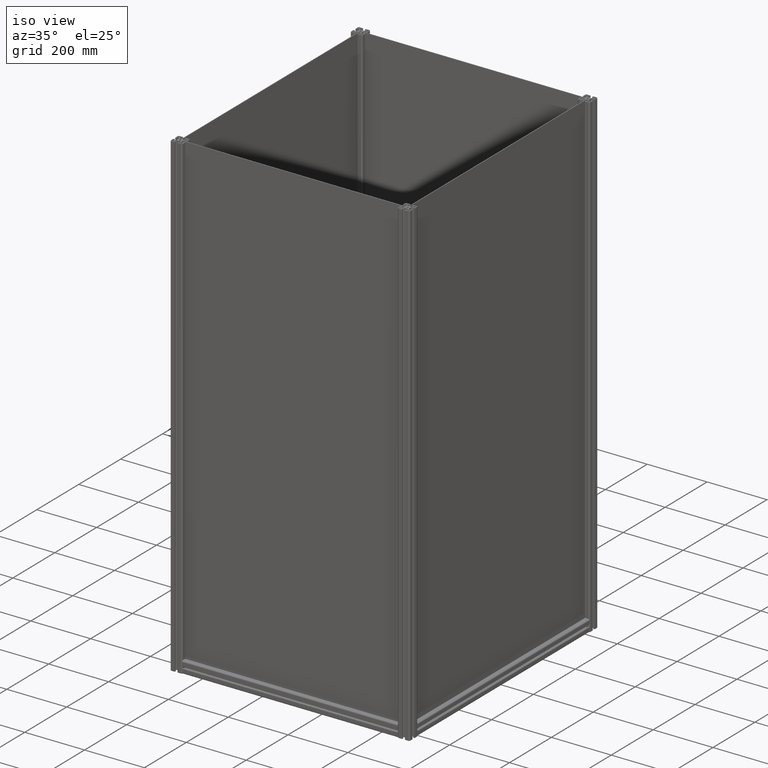
[diagram: clean part render]
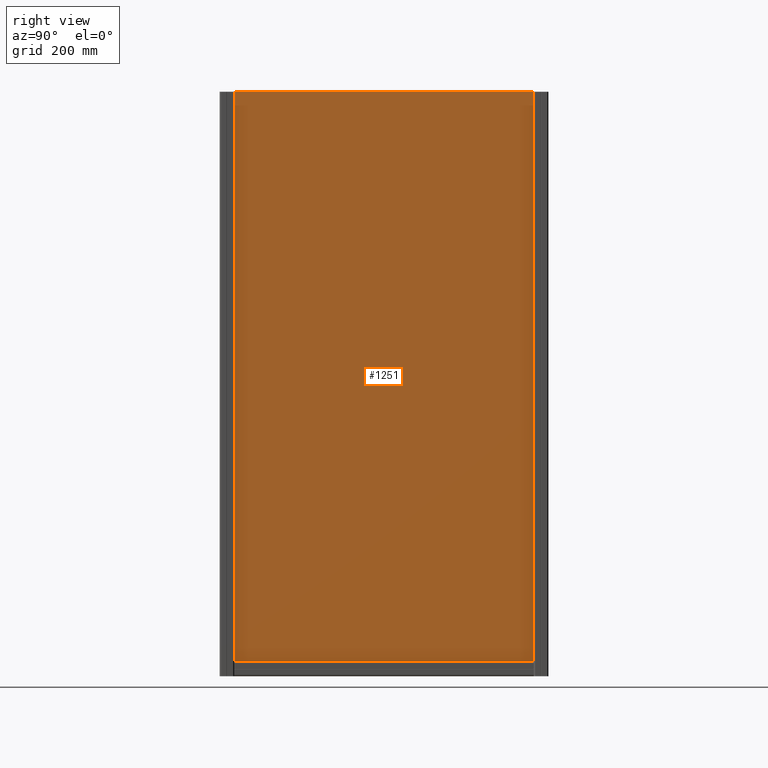
[diagram: tour spotlight — one face highlighted and labeled with its STEP entity id]
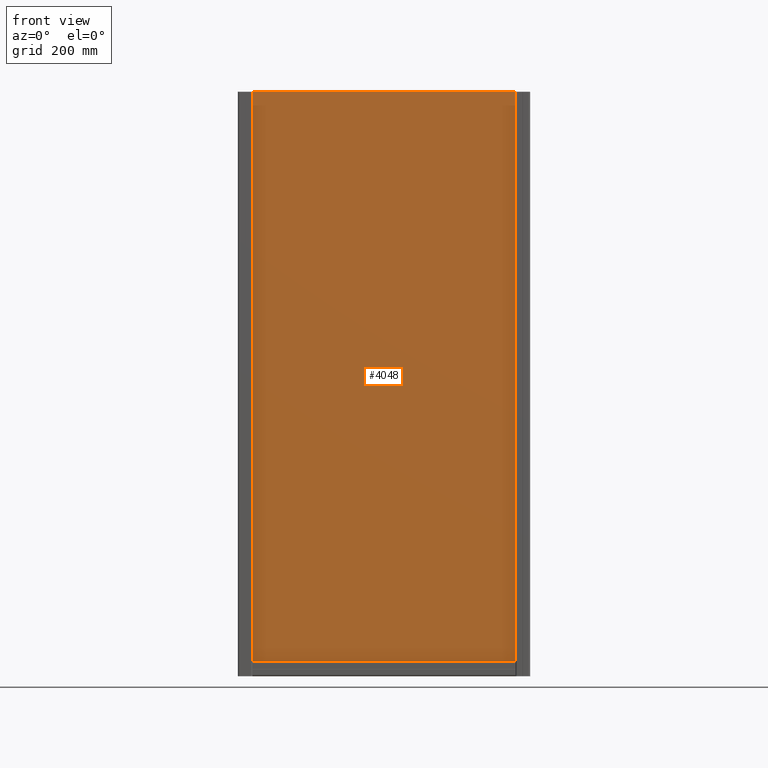
[diagram: tour spotlight — one face highlighted and labeled with its STEP entity id]
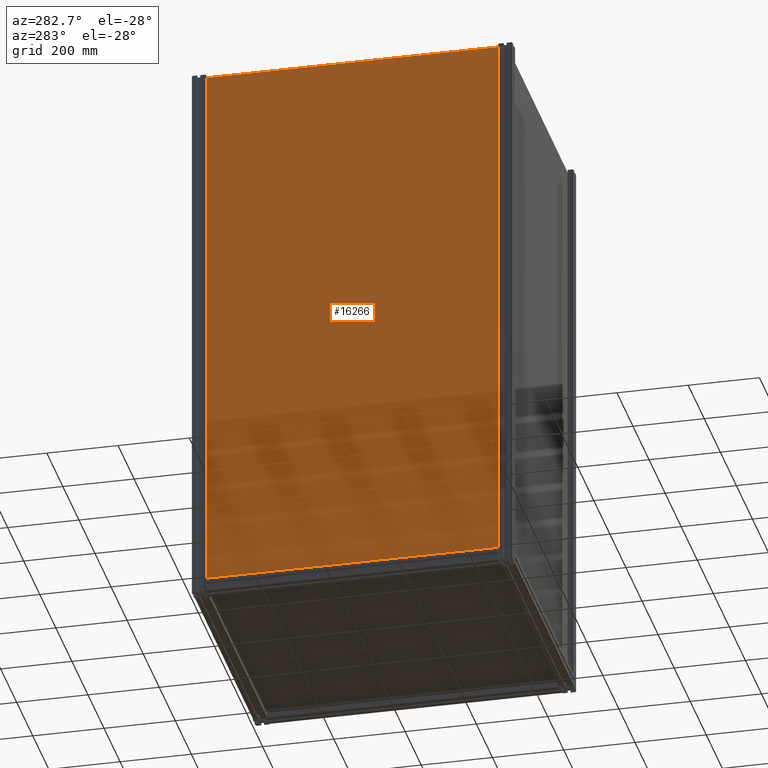
[diagram: tour spotlight — one face highlighted and labeled with its STEP entity id]
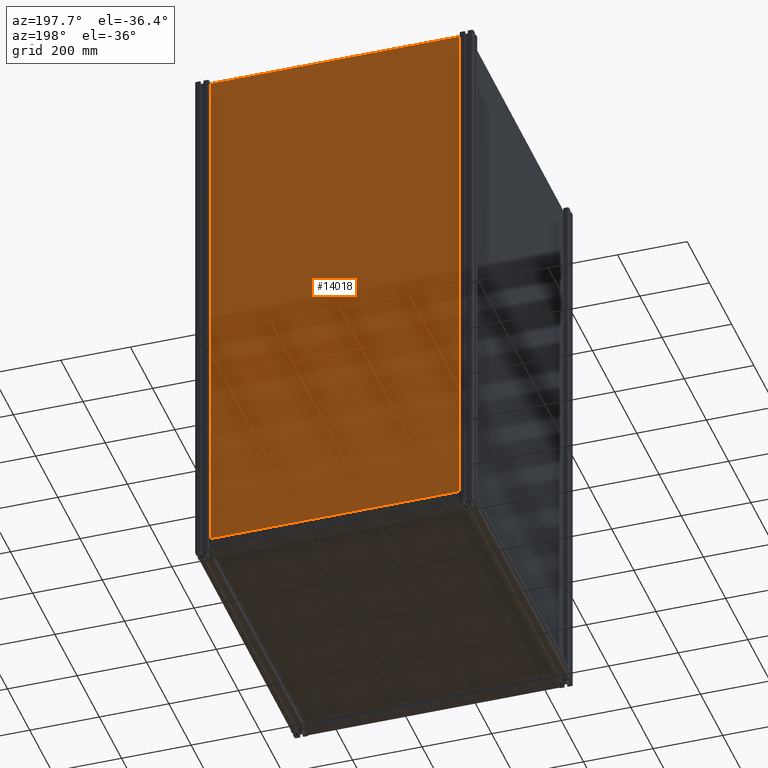
[diagram: tour spotlight — one face highlighted and labeled with its STEP entity id]
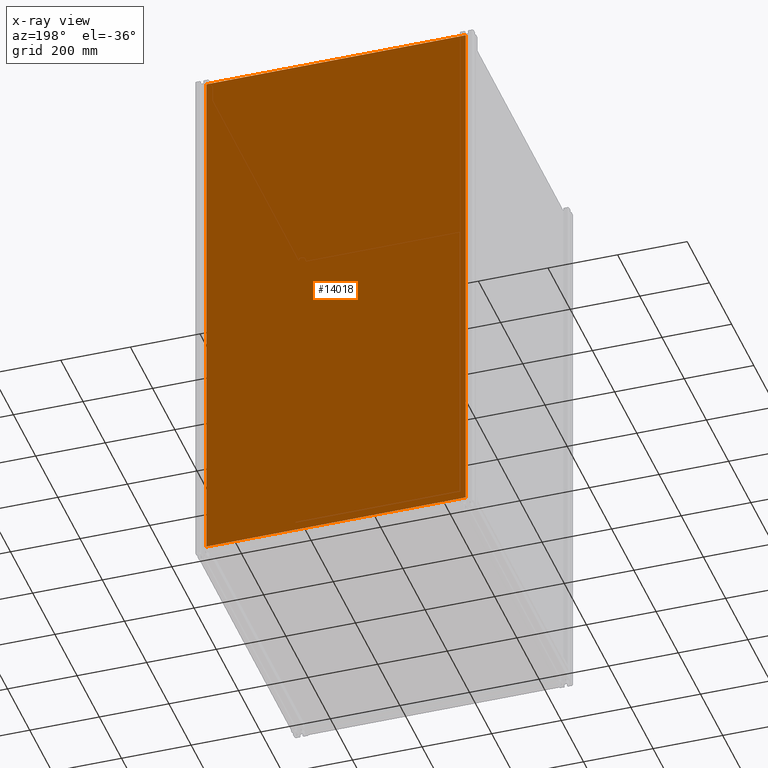
[diagram: x-ray of the same camera — body ghosted, this tour face saturated]
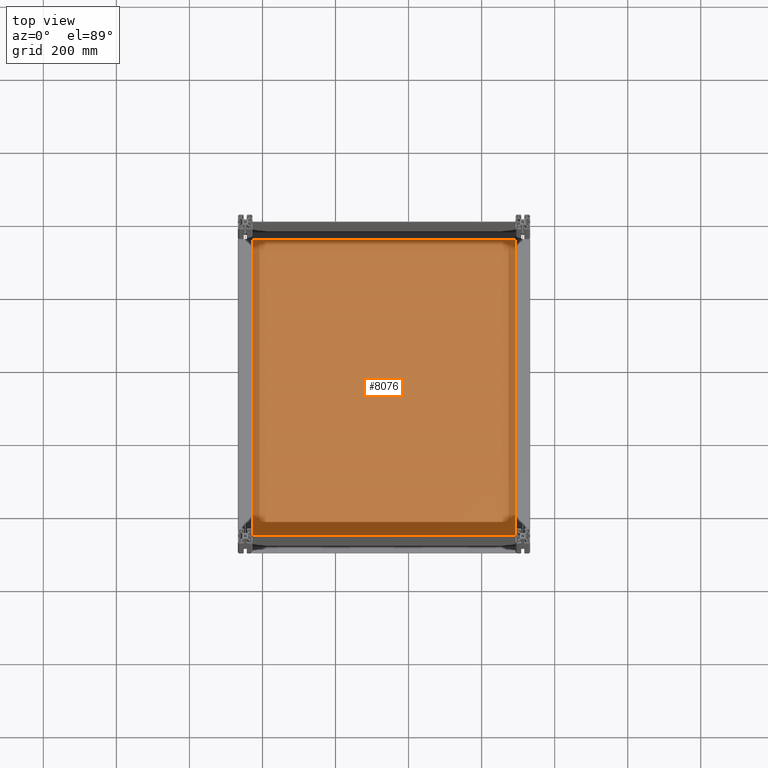
[diagram: tour spotlight — one face highlighted and labeled with its STEP entity id]
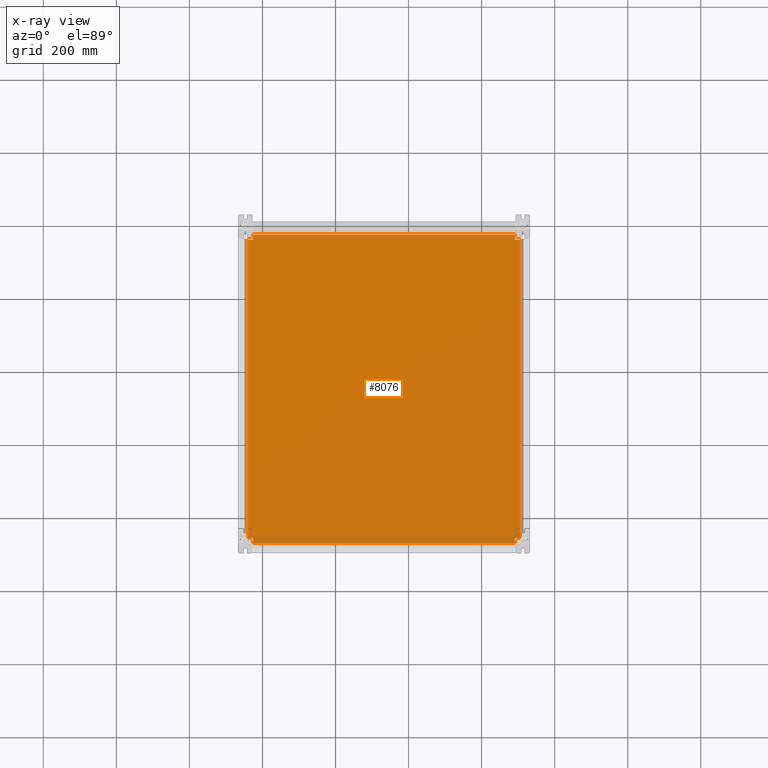
[diagram: x-ray of the same camera — body ghosted, this tour face saturated]
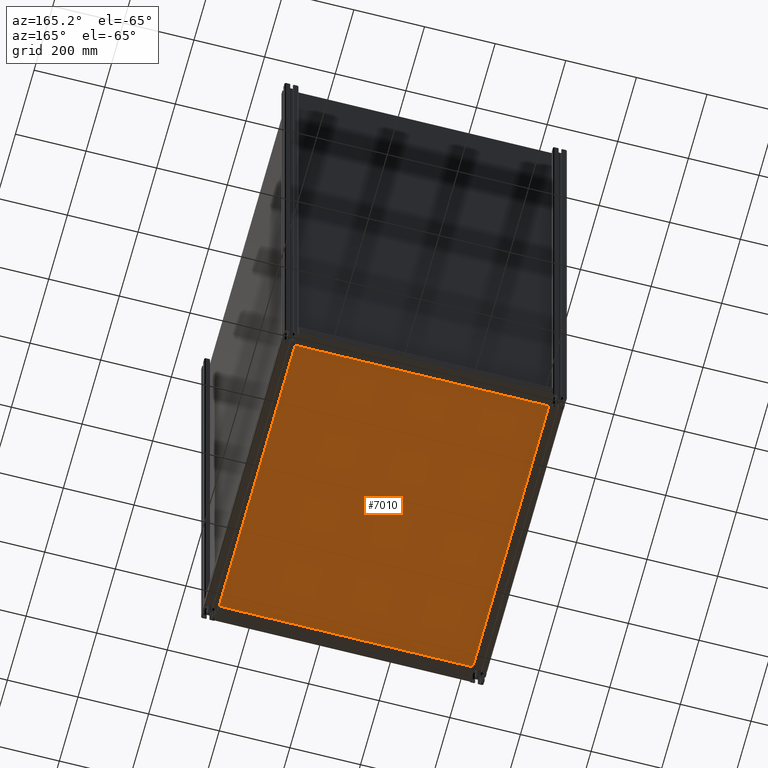
[diagram: tour spotlight — one face highlighted and labeled with its STEP entity id]
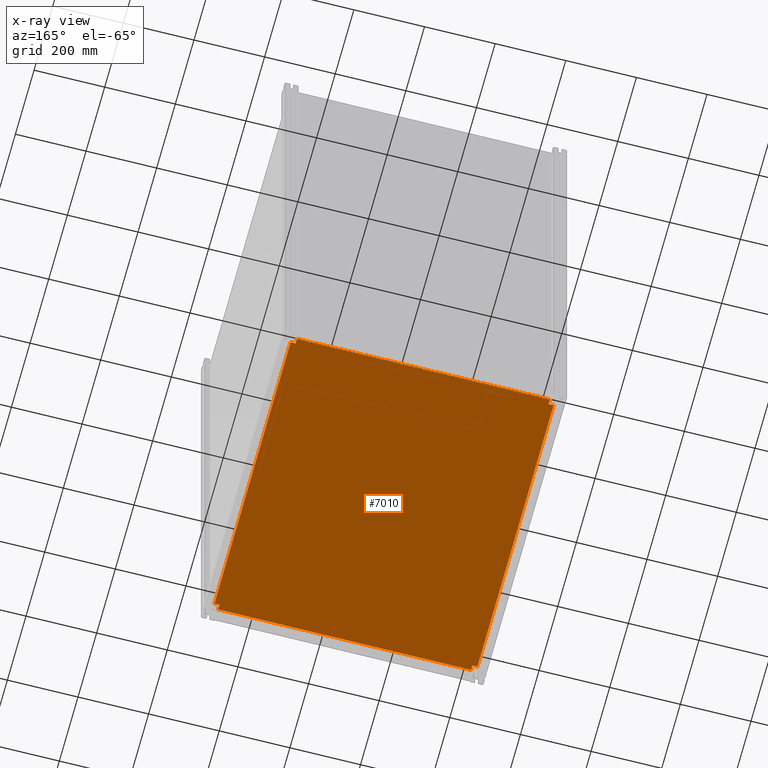
[diagram: x-ray of the same camera — body ghosted, this tour face saturated]
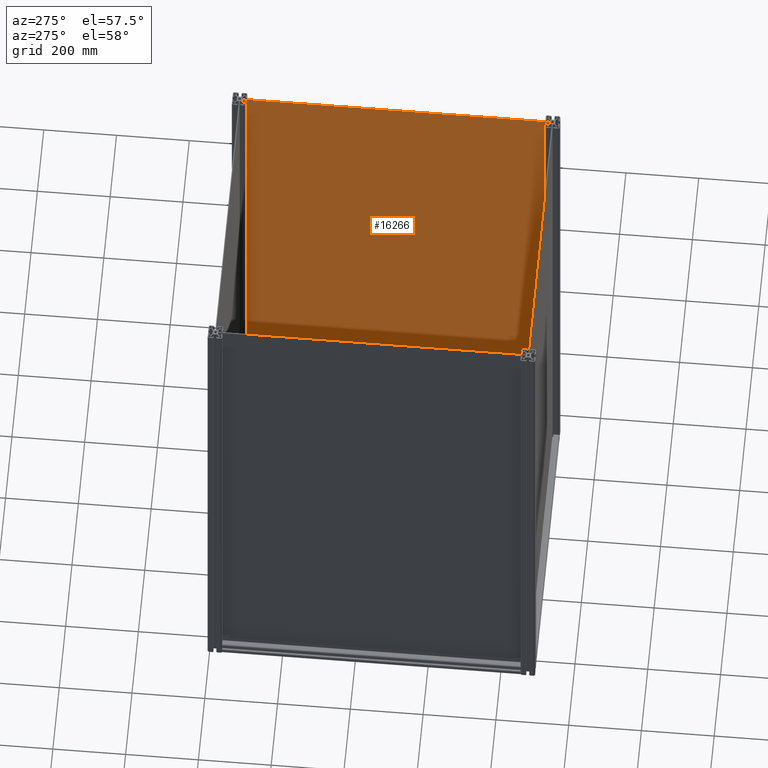
[diagram: tour spotlight — one face highlighted and labeled with its STEP entity id]
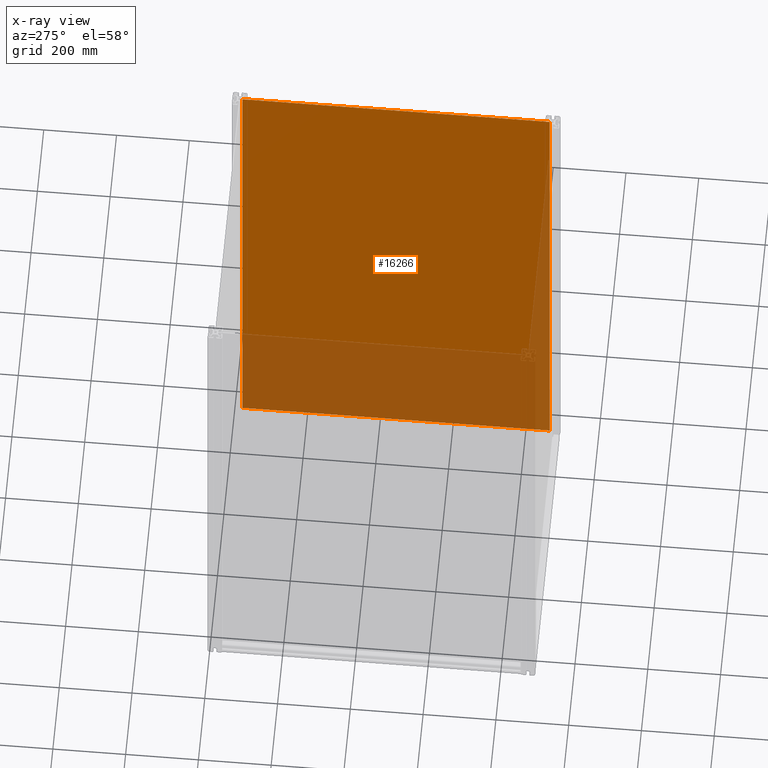
[diagram: x-ray of the same camera — body ghosted, this tour face saturated]
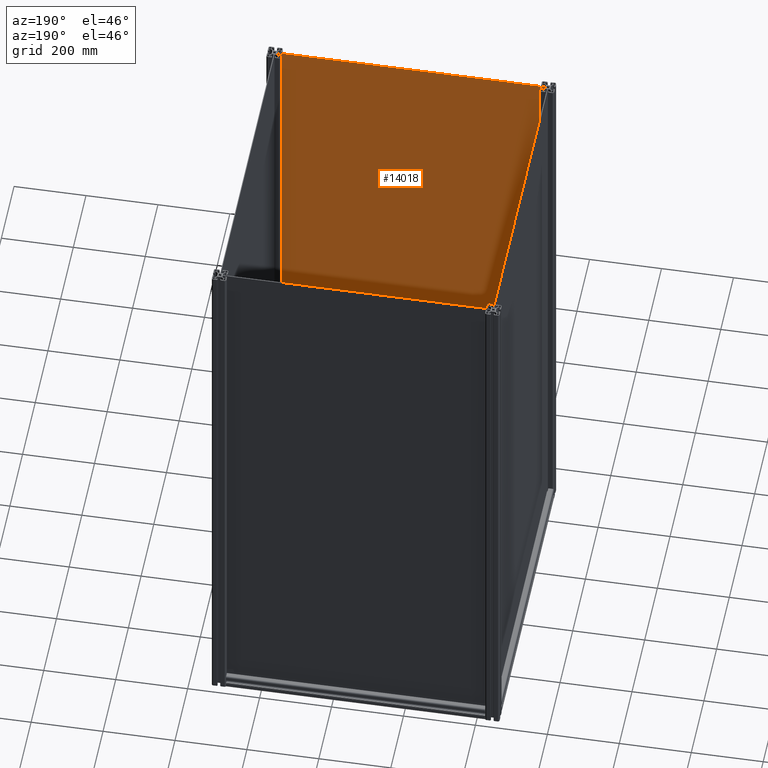
[diagram: tour spotlight — one face highlighted and labeled with its STEP entity id]
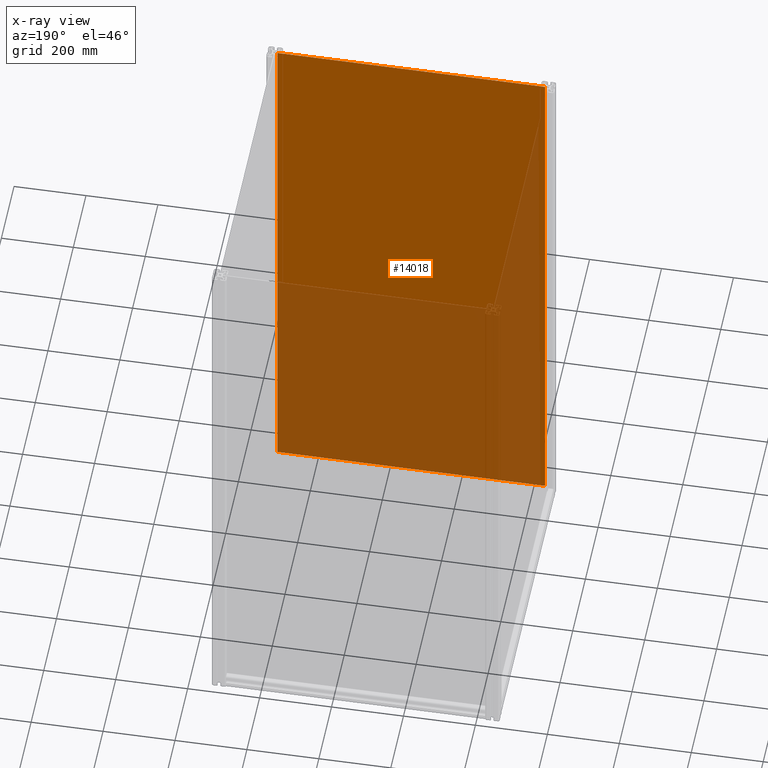
[diagram: x-ray of the same camera — body ghosted, this tour face saturated]
A machine part: a face-by-face anatomy tour. The part has 1230 B-rep faces; the first image is the clean iso view, then the 8 largest visible faces are spotlighted one at a time (largest first), each with its STEP entity span.

Face 1 — right view, entity #1251. In plain terms, the highlighted planar face has unit normal (1, 0, 0).
Definition (entity closure, byte-faithful):
#238 = ORIENTED_EDGE ( 'NONE', *, *, #2338, .T. ) ;
#299 = DIRECTION ( 'NONE',  ( 0.000000000000000000, -1.000000000000000000, 0.000000000000000000 ) ) ;
#477 = DIRECTION ( 'NONE',  ( 1.000000000000000000, 0.000000000000000000, 0.000000000000000000 ) ) ;
#497 = AXIS2_PLACEMENT_3D ( 'NONE', #4757, #3727, #11078 ) ;
#909 = CARTESIAN_POINT ( 'NONE',  ( -600.7269624573378906, 257.8730375426625301, 0.000000000000000000 ) ) ;
#1251 = ADVANCED_FACE ( 'NONE', ( #11570 ), #9826, .T. ) ;
#1435 = VERTEX_POINT ( 'NONE', #14592 ) ;
#2204 = DIRECTION ( 'NONE',  ( -1.000000000000000000, 0.000000000000000000, 0.000000000000000000 ) ) ;
#2338 = EDGE_CURVE ( 'NONE', #7755, #1435, #11988, .T. ) ;
#3090 = VERTEX_POINT ( 'NONE', #6020 ) ;
#3262 = DIRECTION ( 'NONE',  ( -8.825863525702403732E-17, 1.000000000000000000, -0.000000000000000000 ) ) ;
#3727 = DIRECTION ( 'NONE',  ( 0.000000000000000000, 0.000000000000000000, 1.000000000000000000 ) ) ;
#4757 = CARTESIAN_POINT ( 'NONE',  ( 0.000000000000000000, 0.000000000000000000, 0.000000000000000000 ) ) ;
#5540 = ORIENTED_EDGE ( 'NONE', *, *, #10741, .T. ) ;
#5769 = CARTESIAN_POINT ( 'NONE',  ( 244.0730375426620924, 257.8730375426625301, 0.000000000000000000 ) ) ;
#6020 = CARTESIAN_POINT ( 'NONE',  ( -600.7269624573376632, -1314.526962457337504, 0.000000000000000000 ) ) ;
#7006 = LINE ( 'NONE', #14415, #12460 ) ;
#7125 = ORIENTED_EDGE ( 'NONE', *, *, #12336, .T. ) ;
#7131 = CARTESIAN_POINT ( 'NONE',  ( -600.7269624573376632, -1314.526962457337504, 0.000000000000000000 ) ) ;
#7755 = VERTEX_POINT ( 'NONE', #8803 ) ;
#8803 = CARTESIAN_POINT ( 'NONE',  ( 244.0730375426622345, -1314.526962457337504, 0.000000000000000000 ) ) ;
#8814 = VERTEX_POINT ( 'NONE', #9451 ) ;
#9277 = VECTOR ( 'NONE', #477, 1000.000000000000000 ) ;
#9451 = CARTESIAN_POINT ( 'NONE',  ( -600.7269624573378906, 257.8730375426625301, 0.000000000000000000 ) ) ;
#9826 = PLANE ( 'NONE',  #497 ) ;
#10741 = EDGE_CURVE ( 'NONE', #3090, #7755, #14875, .T. ) ;
#10926 = LINE ( 'NONE', #909, #16491 ) ;
#11078 = DIRECTION ( 'NONE',  ( 1.000000000000000000, 0.000000000000000000, 0.000000000000000000 ) ) ;
#11533 = EDGE_CURVE ( 'NONE', #1435, #8814, #10926, .T. ) ;
#11570 = FACE_OUTER_BOUND ( 'NONE', #15821, .T. ) ;
#11873 = VECTOR ( 'NONE', #3262, 1000.000000000000000 ) ;
#11988 = LINE ( 'NONE', #5769, #11873 ) ;
#12336 = EDGE_CURVE ( 'NONE', #8814, #3090, #7006, .T. ) ;
#12460 = VECTOR ( 'NONE', #299, 1000.000000000000000 ) ;
#14415 = CARTESIAN_POINT ( 'NONE',  ( -600.7269624573378906, 257.8730375426625301, 0.000000000000000000 ) ) ;
#14592 = CARTESIAN_POINT ( 'NONE',  ( 244.0730375426620924, 257.8730375426625301, 0.000000000000000000 ) ) ;
#14875 = LINE ( 'NONE', #7131, #9277 ) ;
#15579 = ORIENTED_EDGE ( 'NONE', *, *, #11533, .T. ) ;
#15821 = EDGE_LOOP ( 'NONE', ( #238, #15579, #7125, #5540 ) ) ;
#16491 = VECTOR ( 'NONE', #2204, 1000.000000000000000 ) ;

Face 2 — front view, entity #4048. In plain terms, the highlighted planar face has unit normal (0, 1, 0).
Definition (entity closure, byte-faithful):
#478 = DIRECTION ( 'NONE',  ( 1.412138164112384449E-16, 1.000000000000000000, -0.000000000000000000 ) ) ;
#638 = EDGE_LOOP ( 'NONE', ( #16565, #2720, #821, #2079 ) ) ;
#821 = ORIENTED_EDGE ( 'NONE', *, *, #15634, .F. ) ;
#828 = AXIS2_PLACEMENT_3D ( 'NONE', #9908, #3699, #3489 ) ;
#986 = LINE ( 'NONE', #16158, #12035 ) ;
#1047 = EDGE_CURVE ( 'NONE', #14174, #8640, #16370, .T. ) ;
#1703 = EDGE_CURVE ( 'NONE', #8640, #5302, #986, .T. ) ;
#2079 = ORIENTED_EDGE ( 'NONE', *, *, #1047, .T. ) ;
#2153 = PLANE ( 'NONE',  #828 ) ;
#2239 = CARTESIAN_POINT ( 'NONE',  ( -600.7269624573378906, 257.8730375426625301, -2.000000000000000000 ) ) ;
#2720 = ORIENTED_EDGE ( 'NONE', *, *, #8018, .F. ) ;
#2965 = CARTESIAN_POINT ( 'NONE',  ( -28.32696245733845686, -1314.526962457337504, -2.000000000000000000 ) ) ;
#3005 = CARTESIAN_POINT ( 'NONE',  ( -28.32696245733819751, 257.8730375426625301, -2.000000000000000000 ) ) ;
#3489 = DIRECTION ( 'NONE',  ( 1.000000000000000000, 0.000000000000000000, 0.000000000000000000 ) ) ;
#3699 = DIRECTION ( 'NONE',  ( 0.000000000000000000, 0.000000000000000000, 1.000000000000000000 ) ) ;
#4048 = ADVANCED_FACE ( 'NONE', ( #4263 ), #2153, .F. ) ;
#4263 = FACE_OUTER_BOUND ( 'NONE', #638, .T. ) ;
#4551 = VERTEX_POINT ( 'NONE', #3005 ) ;
#4609 = LINE ( 'NONE', #2239, #15401 ) ;
#5302 = VERTEX_POINT ( 'NONE', #12409 ) ;
#5354 = VECTOR ( 'NONE', #6892, 1000.000000000000000 ) ;
#6892 = DIRECTION ( 'NONE',  ( -1.000000000000000000, 0.000000000000000000, 0.000000000000000000 ) ) ;
#8018 = EDGE_CURVE ( 'NONE', #4551, #5302, #4609, .T. ) ;
#8640 = VERTEX_POINT ( 'NONE', #15535 ) ;
#9088 = VECTOR ( 'NONE', #10371, 1000.000000000000000 ) ;
#9170 = LINE ( 'NONE', #11608, #9088 ) ;
#9908 = CARTESIAN_POINT ( 'NONE',  ( 0.000000000000000000, 0.000000000000000000, -2.000000000000000000 ) ) ;
#10371 = DIRECTION ( 'NONE',  ( -1.117974313196651756E-16, 1.000000000000000000, 0.000000000000000000 ) ) ;
#10463 = CARTESIAN_POINT ( 'NONE',  ( -28.32696245733845686, -1314.526962457337504, -2.000000000000000000 ) ) ;
#11608 = CARTESIAN_POINT ( 'NONE',  ( -28.32696245733819751, 257.8730375426625301, -2.000000000000000000 ) ) ;
#12035 = VECTOR ( 'NONE', #478, 1000.000000000000000 ) ;
#12409 = CARTESIAN_POINT ( 'NONE',  ( -773.1269624573380952, 257.8730375426625301, -2.000000000000000000 ) ) ;
#14174 = VERTEX_POINT ( 'NONE', #10463 ) ;
#14938 = DIRECTION ( 'NONE',  ( -1.000000000000000000, 0.000000000000000000, 0.000000000000000000 ) ) ;
#15401 = VECTOR ( 'NONE', #14938, 1000.000000000000000 ) ;
#15535 = CARTESIAN_POINT ( 'NONE',  ( -773.1269624573383226, -1314.526962457337504, -2.000000000000000000 ) ) ;
#15634 = EDGE_CURVE ( 'NONE', #14174, #4551, #9170, .T. ) ;
#16158 = CARTESIAN_POINT ( 'NONE',  ( -773.1269624573380952, 257.8730375426625301, -2.000000000000000000 ) ) ;
#16370 = LINE ( 'NONE', #2965, #5354 ) ;
#16565 = ORIENTED_EDGE ( 'NONE', *, *, #1703, .T. ) ;

Face 3 — auxiliary view, entity #16266. In plain terms, the highlighted planar face has unit normal (1, 0, 0).
Definition (entity closure, byte-faithful):
#793 = ORIENTED_EDGE ( 'NONE', *, *, #16449, .T. ) ;
#2525 = VERTEX_POINT ( 'NONE', #14669 ) ;
#2846 = DIRECTION ( 'NONE',  ( 0.000000000000000000, -1.000000000000000000, 0.000000000000000000 ) ) ;
#3108 = LINE ( 'NONE', #12036, #8449 ) ;
#3109 = VECTOR ( 'NONE', #8239, 1000.000000000000000 ) ;
#3179 = EDGE_CURVE ( 'NONE', #8561, #5224, #14235, .T. ) ;
#3549 = EDGE_CURVE ( 'NONE', #8561, #2525, #9174, .T. ) ;
#4281 = CARTESIAN_POINT ( 'NONE',  ( -600.7269624573378906, 257.8730375426625301, -2.000000000000000000 ) ) ;
#5052 = DIRECTION ( 'NONE',  ( 1.000000000000000000, 0.000000000000000000, 0.000000000000000000 ) ) ;
#5224 = VERTEX_POINT ( 'NONE', #14832 ) ;
#5229 = VECTOR ( 'NONE', #12039, 1000.000000000000000 ) ;
#6183 = EDGE_CURVE ( 'NONE', #2525, #13108, #3108, .T. ) ;
#6281 = DIRECTION ( 'NONE',  ( -1.000000000000000000, 0.000000000000000000, 0.000000000000000000 ) ) ;
#6575 = EDGE_LOOP ( 'NONE', ( #6827, #15390, #793, #7745 ) ) ;
#6827 = ORIENTED_EDGE ( 'NONE', *, *, #3549, .F. ) ;
#7007 = CARTESIAN_POINT ( 'NONE',  ( -600.7269624573376632, -1314.526962457337504, -2.000000000000001776 ) ) ;
#7745 = ORIENTED_EDGE ( 'NONE', *, *, #6183, .F. ) ;
#7868 = DIRECTION ( 'NONE',  ( 0.000000000000000000, 0.000000000000000000, 1.000000000000000000 ) ) ;
#8239 = DIRECTION ( 'NONE',  ( 8.825863525702402499E-17, -1.000000000000000000, 0.000000000000000000 ) ) ;
#8449 = VECTOR ( 'NONE', #2846, 1000.000000000000000 ) ;
#8561 = VERTEX_POINT ( 'NONE', #9951 ) ;
#9174 = LINE ( 'NONE', #4281, #14718 ) ;
#9951 = CARTESIAN_POINT ( 'NONE',  ( 244.0730375426620924, 257.8730375426625301, -2.000000000000001776 ) ) ;
#10554 = CARTESIAN_POINT ( 'NONE',  ( 0.000000000000000000, 0.000000000000000000, -2.000000000000000000 ) ) ;
#10743 = LINE ( 'NONE', #7007, #5229 ) ;
#12036 = CARTESIAN_POINT ( 'NONE',  ( -600.7269624573378906, 257.8730375426625301, -2.000000000000000000 ) ) ;
#12039 = DIRECTION ( 'NONE',  ( -1.000000000000000000, 0.000000000000000000, 0.000000000000000000 ) ) ;
#12767 = PLANE ( 'NONE',  #16529 ) ;
#13108 = VERTEX_POINT ( 'NONE', #16056 ) ;
#13120 = CARTESIAN_POINT ( 'NONE',  ( 244.0730375426620924, 257.8730375426625301, -2.000000000000001776 ) ) ;
#14235 = LINE ( 'NONE', #13120, #3109 ) ;
#14669 = CARTESIAN_POINT ( 'NONE',  ( -600.7269624573378906, 257.8730375426625301, -2.000000000000000000 ) ) ;
#14718 = VECTOR ( 'NONE', #6281, 1000.000000000000000 ) ;
#14832 = CARTESIAN_POINT ( 'NONE',  ( 244.0730375426622345, -1314.526962457337504, -2.000000000000001776 ) ) ;
#15390 = ORIENTED_EDGE ( 'NONE', *, *, #3179, .T. ) ;
#15749 = FACE_OUTER_BOUND ( 'NONE', #6575, .T. ) ;
#16056 = CARTESIAN_POINT ( 'NONE',  ( -600.7269624573376632, -1314.526962457337504, -2.000000000000001776 ) ) ;
#16266 = ADVANCED_FACE ( 'NONE', ( #15749 ), #12767, .F. ) ;
#16449 = EDGE_CURVE ( 'NONE', #5224, #13108, #10743, .T. ) ;
#16529 = AXIS2_PLACEMENT_3D ( 'NONE', #10554, #7868, #5052 ) ;

Face 4 — auxiliary view, entity #14018. An x-ray twin of the same camera follows (body ghosted, this face saturated) — the face is partly hidden behind the body. In plain terms, the highlighted planar face has unit normal (0, 1, 0).
Definition (entity closure, byte-faithful):
#968 = ORIENTED_EDGE ( 'NONE', *, *, #3813, .F. ) ;
#2364 = EDGE_LOOP ( 'NONE', ( #3044, #14877, #968, #7814 ) ) ;
#2384 = EDGE_CURVE ( 'NONE', #2529, #8824, #6465, .T. ) ;
#2529 = VERTEX_POINT ( 'NONE', #9503 ) ;
#2864 = VERTEX_POINT ( 'NONE', #2877 ) ;
#2877 = CARTESIAN_POINT ( 'NONE',  ( -773.1269624573383226, -1314.526962457337504, 4.440892098500626162E-13 ) ) ;
#3044 = ORIENTED_EDGE ( 'NONE', *, *, #2384, .T. ) ;
#3055 = VECTOR ( 'NONE', #9197, 1000.000000000000000 ) ;
#3143 = EDGE_CURVE ( 'NONE', #13436, #2529, #14269, .T. ) ;
#3278 = CARTESIAN_POINT ( 'NONE',  ( -28.32696245733845686, -1314.526962457337504, 0.000000000000000000 ) ) ;
#3519 = VECTOR ( 'NONE', #14862, 1000.000000000000000 ) ;
#3813 = EDGE_CURVE ( 'NONE', #13436, #2864, #14616, .T. ) ;
#4608 = CARTESIAN_POINT ( 'NONE',  ( -600.7269624573378906, 257.8730375426625301, 0.000000000000000000 ) ) ;
#4962 = PLANE ( 'NONE',  #5652 ) ;
#5103 = CARTESIAN_POINT ( 'NONE',  ( -773.1269624573380952, 257.8730375426625301, 0.000000000000000000 ) ) ;
#5652 = AXIS2_PLACEMENT_3D ( 'NONE', #14886, #9929, #16022 ) ;
#6465 = LINE ( 'NONE', #4608, #12017 ) ;
#7814 = ORIENTED_EDGE ( 'NONE', *, *, #3143, .T. ) ;
#8129 = CARTESIAN_POINT ( 'NONE',  ( -773.1269624573380952, 257.8730375426625301, 0.000000000000000000 ) ) ;
#8824 = VERTEX_POINT ( 'NONE', #5103 ) ;
#9197 = DIRECTION ( 'NONE',  ( -1.117974313196651756E-16, 1.000000000000000000, 0.000000000000000000 ) ) ;
#9337 = LINE ( 'NONE', #8129, #15011 ) ;
#9503 = CARTESIAN_POINT ( 'NONE',  ( -28.32696245733819751, 257.8730375426625301, 0.000000000000000000 ) ) ;
#9929 = DIRECTION ( 'NONE',  ( 0.000000000000000000, 0.000000000000000000, 1.000000000000000000 ) ) ;
#10762 = EDGE_CURVE ( 'NONE', #2864, #8824, #9337, .T. ) ;
#11597 = FACE_OUTER_BOUND ( 'NONE', #2364, .T. ) ;
#12017 = VECTOR ( 'NONE', #12324, 1000.000000000000000 ) ;
#12324 = DIRECTION ( 'NONE',  ( -1.000000000000000000, 0.000000000000000000, 0.000000000000000000 ) ) ;
#13436 = VERTEX_POINT ( 'NONE', #14642 ) ;
#14018 = ADVANCED_FACE ( 'NONE', ( #11597 ), #4962, .T. ) ;
#14269 = LINE ( 'NONE', #15725, #3055 ) ;
#14616 = LINE ( 'NONE', #3278, #3519 ) ;
#14642 = CARTESIAN_POINT ( 'NONE',  ( -28.32696245733845686, -1314.526962457337504, 0.000000000000000000 ) ) ;
#14862 = DIRECTION ( 'NONE',  ( -1.000000000000000000, 0.000000000000000000, 0.000000000000000000 ) ) ;
#14877 = ORIENTED_EDGE ( 'NONE', *, *, #10762, .F. ) ;
#14886 = CARTESIAN_POINT ( 'NONE',  ( 0.000000000000000000, 0.000000000000000000, 0.000000000000000000 ) ) ;
#15011 = VECTOR ( 'NONE', #15944, 1000.000000000000000 ) ;
#15725 = CARTESIAN_POINT ( 'NONE',  ( -28.32696245733819751, 257.8730375426625301, 0.000000000000000000 ) ) ;
#15944 = DIRECTION ( 'NONE',  ( 1.412138164112384203E-16, 1.000000000000000000, -0.000000000000000000 ) ) ;
#16022 = DIRECTION ( 'NONE',  ( 1.000000000000000000, 0.000000000000000000, 0.000000000000000000 ) ) ;

Face 5 — top view, entity #8076. An x-ray twin of the same camera follows (body ghosted, this face saturated) — the face is partly hidden behind the body. In plain terms, the highlighted planar face has unit normal (0, 0, -1).
Definition (entity closure, byte-faithful):
#213 = VECTOR ( 'NONE', #8160, 1000.000000000000000 ) ;
#268 = CARTESIAN_POINT ( 'NONE',  ( 144.0730375426619787, 243.8730375426625301, -2.000000000000001776 ) ) ;
#305 = EDGE_LOOP ( 'NONE', ( #1678, #11902, #10355, #12588, #4654, #710, #5099, #16098, #3331, #734, #432, #4315 ) ) ;
#372 = CARTESIAN_POINT ( 'NONE',  ( -586.7269624573378906, -586.9269624573374813, -2.000000000000001776 ) ) ;
#432 = ORIENTED_EDGE ( 'NONE', *, *, #782, .T. ) ;
#528 = VERTEX_POINT ( 'NONE', #14456 ) ;
#661 = CARTESIAN_POINT ( 'NONE',  ( -586.7269624573378906, 0.000000000000000000, -2.000000000000000000 ) ) ;
#710 = ORIENTED_EDGE ( 'NONE', *, *, #13478, .T. ) ;
#734 = ORIENTED_EDGE ( 'NONE', *, *, #10683, .F. ) ;
#782 = EDGE_CURVE ( 'NONE', #16253, #2776, #10157, .T. ) ;
#1623 = VECTOR ( 'NONE', #2412, 1000.000000000000000 ) ;
#1678 = ORIENTED_EDGE ( 'NONE', *, *, #15415, .F. ) ;
#1775 = VECTOR ( 'NONE', #14551, 1000.000000000000000 ) ;
#1910 = DIRECTION ( 'NONE',  ( 0.000000000000000000, -1.000000000000000000, 0.000000000000000000 ) ) ;
#1961 = LINE ( 'NONE', #14662, #1775 ) ;
#2193 = VECTOR ( 'NONE', #14887, 1000.000000000000000 ) ;
#2208 = DIRECTION ( 'NONE',  ( 0.000000000000000000, -1.000000000000000000, 0.000000000000000000 ) ) ;
#2301 = CARTESIAN_POINT ( 'NONE',  ( 130.0730375426619787, 243.8730375426625301, -2.000000000000000000 ) ) ;
#2349 = LINE ( 'NONE', #661, #2193 ) ;
#2412 = DIRECTION ( 'NONE',  ( 0.000000000000000000, 1.000000000000000000, 0.000000000000000000 ) ) ;
#2744 = EDGE_CURVE ( 'NONE', #2839, #528, #12698, .T. ) ;
#2776 = VERTEX_POINT ( 'NONE', #10027 ) ;
#2839 = VERTEX_POINT ( 'NONE', #372 ) ;
#3026 = VECTOR ( 'NONE', #9950, 1000.000000000000000 ) ;
#3331 = ORIENTED_EDGE ( 'NONE', *, *, #9806, .T. ) ;
#3339 = LINE ( 'NONE', #7015, #3026 ) ;
#3991 = LINE ( 'NONE', #13249, #15190 ) ;
#4011 = CARTESIAN_POINT ( 'NONE',  ( -600.7269624573378906, 243.8730375426625301, -2.000000000000000000 ) ) ;
#4107 = CARTESIAN_POINT ( 'NONE',  ( 144.0730375426620924, -572.9269624573374813, -2.000000000000001776 ) ) ;
#4315 = ORIENTED_EDGE ( 'NONE', *, *, #15041, .T. ) ;
#4654 = ORIENTED_EDGE ( 'NONE', *, *, #9662, .T. ) ;
#4852 = DIRECTION ( 'NONE',  ( 1.000000000000000000, 0.000000000000000000, 0.000000000000000000 ) ) ;
#5099 = ORIENTED_EDGE ( 'NONE', *, *, #11685, .T. ) ;
#5409 = CARTESIAN_POINT ( 'NONE',  ( -600.7269624573378906, 257.8730375426625301, -2.000000000000000000 ) ) ;
#5518 = CARTESIAN_POINT ( 'NONE',  ( -586.7269624573378906, 257.8730375426625301, -2.000000000000000000 ) ) ;
#5550 = CARTESIAN_POINT ( 'NONE',  ( -600.7269624573377769, -586.9269624573374813, -2.000000000000001776 ) ) ;
#6240 = PLANE ( 'NONE',  #10524 ) ;
#6254 = DIRECTION ( 'NONE',  ( -1.000000000000000000, 0.000000000000000000, 0.000000000000000000 ) ) ;
#6982 = DIRECTION ( 'NONE',  ( 1.000000000000000000, 0.000000000000000000, -0.000000000000000000 ) ) ;
#7015 = CARTESIAN_POINT ( 'NONE',  ( 144.0730375426619787, 257.8730375426625301, -2.000000000000001776 ) ) ;
#7079 = VECTOR ( 'NONE', #1910, 1000.000000000000000 ) ;
#7303 = LINE ( 'NONE', #9794, #7079 ) ;
#7360 = LINE ( 'NONE', #9955, #12843 ) ;
#7583 = EDGE_CURVE ( 'NONE', #15391, #13829, #3339, .T. ) ;
#8064 = CARTESIAN_POINT ( 'NONE',  ( 130.0730375426620924, 0.000000000000000000, -2.000000000000000000 ) ) ;
#8076 = ADVANCED_FACE ( 'NONE', ( #15351 ), #6240, .F. ) ;
#8160 = DIRECTION ( 'NONE',  ( -1.000000000000000000, 0.000000000000000000, 0.000000000000000000 ) ) ;
#8387 = LINE ( 'NONE', #5409, #8770 ) ;
#8700 = CARTESIAN_POINT ( 'NONE',  ( 130.0730375426620924, -586.9269624573374813, -2.000000000000001776 ) ) ;
#8770 = VECTOR ( 'NONE', #6254, 1000.000000000000000 ) ;
#9492 = VERTEX_POINT ( 'NONE', #11947 ) ;
#9528 = VERTEX_POINT ( 'NONE', #5518 ) ;
#9662 = EDGE_CURVE ( 'NONE', #13829, #9492, #7360, .T. ) ;
#9794 = CARTESIAN_POINT ( 'NONE',  ( 130.0730375426619787, 0.000000000000000000, -2.000000000000000000 ) ) ;
#9806 = EDGE_CURVE ( 'NONE', #528, #13950, #1961, .T. ) ;
#9950 = DIRECTION ( 'NONE',  ( 1.314184451497581013E-16, -1.000000000000000000, 0.000000000000000000 ) ) ;
#9955 = CARTESIAN_POINT ( 'NONE',  ( 0.000000000000000000, -572.9269624573374813, -2.000000000000000000 ) ) ;
#10027 = CARTESIAN_POINT ( 'NONE',  ( -586.7269624573378906, 243.8730375426625301, -2.000000000000000000 ) ) ;
#10157 = LINE ( 'NONE', #13309, #15843 ) ;
#10355 = ORIENTED_EDGE ( 'NONE', *, *, #10424, .T. ) ;
#10424 = EDGE_CURVE ( 'NONE', #12910, #15391, #14095, .T. ) ;
#10524 = AXIS2_PLACEMENT_3D ( 'NONE', #16321, #15085, #4852 ) ;
#10683 = EDGE_CURVE ( 'NONE', #16253, #13950, #3991, .T. ) ;
#11205 = DIRECTION ( 'NONE',  ( -1.000000000000000000, -0.000000000000000000, 0.000000000000000000 ) ) ;
#11390 = CARTESIAN_POINT ( 'NONE',  ( -600.7269624573378906, -572.9269624573374813, -2.000000000000000000 ) ) ;
#11499 = CARTESIAN_POINT ( 'NONE',  ( -586.7269624573378906, 0.000000000000000000, -2.000000000000000000 ) ) ;
#11685 = EDGE_CURVE ( 'NONE', #12072, #2839, #16405, .T. ) ;
#11902 = ORIENTED_EDGE ( 'NONE', *, *, #14667, .T. ) ;
#11947 = CARTESIAN_POINT ( 'NONE',  ( 130.0730375426620924, -572.9269624573374813, -2.000000000000000000 ) ) ;
#12072 = VERTEX_POINT ( 'NONE', #8700 ) ;
#12222 = DIRECTION ( 'NONE',  ( 0.000000000000000000, -1.000000000000000000, 0.000000000000000000 ) ) ;
#12238 = CARTESIAN_POINT ( 'NONE',  ( 0.000000000000000000, 243.8730375426625301, -2.000000000000000000 ) ) ;
#12588 = ORIENTED_EDGE ( 'NONE', *, *, #7583, .T. ) ;
#12698 = LINE ( 'NONE', #11499, #1623 ) ;
#12843 = VECTOR ( 'NONE', #11205, 1000.000000000000000 ) ;
#12910 = VERTEX_POINT ( 'NONE', #2301 ) ;
#13249 = CARTESIAN_POINT ( 'NONE',  ( -600.7269624573378906, 257.8730375426625301, -2.000000000000000000 ) ) ;
#13309 = CARTESIAN_POINT ( 'NONE',  ( 0.000000000000000000, 243.8730375426625301, -2.000000000000000000 ) ) ;
#13478 = EDGE_CURVE ( 'NONE', #9492, #12072, #16373, .T. ) ;
#13829 = VERTEX_POINT ( 'NONE', #4107 ) ;
#13950 = VERTEX_POINT ( 'NONE', #11390 ) ;
#14095 = LINE ( 'NONE', #12238, #14550 ) ;
#14313 = VERTEX_POINT ( 'NONE', #14703 ) ;
#14456 = CARTESIAN_POINT ( 'NONE',  ( -586.7269624573378906, -572.9269624573374813, -2.000000000000000000 ) ) ;
#14550 = VECTOR ( 'NONE', #6982, 1000.000000000000000 ) ;
#14551 = DIRECTION ( 'NONE',  ( -1.000000000000000000, -0.000000000000000000, 0.000000000000000000 ) ) ;
#14662 = CARTESIAN_POINT ( 'NONE',  ( 0.000000000000000000, -572.9269624573374813, -2.000000000000000000 ) ) ;
#14667 = EDGE_CURVE ( 'NONE', #14313, #12910, #7303, .T. ) ;
#14703 = CARTESIAN_POINT ( 'NONE',  ( 130.0730375426619787, 257.8730375426625301, -2.000000000000000000 ) ) ;
#14887 = DIRECTION ( 'NONE',  ( 0.000000000000000000, 1.000000000000000000, 0.000000000000000000 ) ) ;
#15041 = EDGE_CURVE ( 'NONE', #2776, #9528, #2349, .T. ) ;
#15085 = DIRECTION ( 'NONE',  ( 0.000000000000000000, 0.000000000000000000, 1.000000000000000000 ) ) ;
#15190 = VECTOR ( 'NONE', #2208, 1000.000000000000000 ) ;
#15351 = FACE_OUTER_BOUND ( 'NONE', #305, .T. ) ;
#15391 = VERTEX_POINT ( 'NONE', #268 ) ;
#15415 = EDGE_CURVE ( 'NONE', #14313, #9528, #8387, .T. ) ;
#15843 = VECTOR ( 'NONE', #16092, 1000.000000000000000 ) ;
#16092 = DIRECTION ( 'NONE',  ( 1.000000000000000000, 0.000000000000000000, -0.000000000000000000 ) ) ;
#16098 = ORIENTED_EDGE ( 'NONE', *, *, #2744, .T. ) ;
#16140 = VECTOR ( 'NONE', #12222, 1000.000000000000000 ) ;
#16253 = VERTEX_POINT ( 'NONE', #4011 ) ;
#16321 = CARTESIAN_POINT ( 'NONE',  ( 0.000000000000000000, 0.000000000000000000, -2.000000000000000000 ) ) ;
#16373 = LINE ( 'NONE', #8064, #16140 ) ;
#16405 = LINE ( 'NONE', #5550, #213 ) ;

Face 6 — auxiliary view, entity #7010. An x-ray twin of the same camera follows (body ghosted, this face saturated) — the face is partly hidden behind the body. In plain terms, the highlighted planar face has unit normal (0, 0, -1).
Definition (entity closure, byte-faithful):
#177 = DIRECTION ( 'NONE',  ( -1.000000000000000000, -0.000000000000000000, -0.000000000000000000 ) ) ;
#347 = CARTESIAN_POINT ( 'NONE',  ( 130.0730375426620924, -586.9269624573374813, 0.000000000000000000 ) ) ;
#354 = VECTOR ( 'NONE', #9068, 1000.000000000000000 ) ;
#1203 = DIRECTION ( 'NONE',  ( 1.000000000000000000, 0.000000000000000000, 0.000000000000000000 ) ) ;
#1216 = EDGE_CURVE ( 'NONE', #2113, #6194, #11171, .T. ) ;
#1359 = DIRECTION ( 'NONE',  ( 0.000000000000000000, -1.000000000000000000, 0.000000000000000000 ) ) ;
#1497 = LINE ( 'NONE', #4507, #12381 ) ;
#1518 = DIRECTION ( 'NONE',  ( 0.000000000000000000, -1.000000000000000000, 0.000000000000000000 ) ) ;
#1729 = DIRECTION ( 'NONE',  ( -1.000000000000000000, -0.000000000000000000, -0.000000000000000000 ) ) ;
#1761 = LINE ( 'NONE', #4752, #12666 ) ;
#1821 = ORIENTED_EDGE ( 'NONE', *, *, #13431, .F. ) ;
#2020 = DIRECTION ( 'NONE',  ( -0.000000000000000000, 1.000000000000000000, -0.000000000000000000 ) ) ;
#2113 = VERTEX_POINT ( 'NONE', #6173 ) ;
#2119 = VERTEX_POINT ( 'NONE', #4997 ) ;
#2154 = LINE ( 'NONE', #9138, #2238 ) ;
#2186 = ORIENTED_EDGE ( 'NONE', *, *, #14563, .F. ) ;
#2219 = ORIENTED_EDGE ( 'NONE', *, *, #4119, .F. ) ;
#2238 = VECTOR ( 'NONE', #1359, 1000.000000000000000 ) ;
#2300 = CARTESIAN_POINT ( 'NONE',  ( 130.0730375426620924, -572.9269624573374813, 0.000000000000000000 ) ) ;
#2423 = PLANE ( 'NONE',  #12526 ) ;
#2703 = EDGE_CURVE ( 'NONE', #5113, #3247, #1761, .T. ) ;
#2953 = ORIENTED_EDGE ( 'NONE', *, *, #13339, .F. ) ;
#3206 = VECTOR ( 'NONE', #4672, 1000.000000000000000 ) ;
#3243 = EDGE_CURVE ( 'NONE', #5113, #5060, #3311, .T. ) ;
#3247 = VERTEX_POINT ( 'NONE', #6171 ) ;
#3311 = LINE ( 'NONE', #8574, #3206 ) ;
#3415 = DIRECTION ( 'NONE',  ( 0.000000000000000000, 0.000000000000000000, 1.000000000000000000 ) ) ;
#3883 = ORIENTED_EDGE ( 'NONE', *, *, #5070, .F. ) ;
#3949 = CARTESIAN_POINT ( 'NONE',  ( -600.7269624573378906, 243.8730375426625301, 0.000000000000000000 ) ) ;
#3982 = CARTESIAN_POINT ( 'NONE',  ( -586.7269624573378906, 257.8730375426625301, 0.000000000000000000 ) ) ;
#4119 = EDGE_CURVE ( 'NONE', #6348, #6194, #15861, .T. ) ;
#4176 = VECTOR ( 'NONE', #11457, 1000.000000000000000 ) ;
#4478 = VERTEX_POINT ( 'NONE', #5090 ) ;
#4507 = CARTESIAN_POINT ( 'NONE',  ( -586.7269624573378906, -572.9269624573374813, 0.000000000000000000 ) ) ;
#4541 = EDGE_CURVE ( 'NONE', #12078, #4478, #5454, .T. ) ;
#4672 = DIRECTION ( 'NONE',  ( 0.000000000000000000, -1.000000000000000000, 0.000000000000000000 ) ) ;
#4752 = CARTESIAN_POINT ( 'NONE',  ( -600.7269624573378906, 243.8730375426625301, 0.000000000000000000 ) ) ;
#4818 = VERTEX_POINT ( 'NONE', #3982 ) ;
#4850 = VECTOR ( 'NONE', #1518, 1000.000000000000000 ) ;
#4997 = CARTESIAN_POINT ( 'NONE',  ( -586.7269624573378906, -572.9269624573374813, 0.000000000000000000 ) ) ;
#5025 = VECTOR ( 'NONE', #2020, 1000.000000000000000 ) ;
#5060 = VERTEX_POINT ( 'NONE', #14390 ) ;
#5070 = EDGE_CURVE ( 'NONE', #2119, #5060, #12325, .T. ) ;
#5090 = CARTESIAN_POINT ( 'NONE',  ( 144.0730375426619787, 243.8730375426625301, 0.000000000000000000 ) ) ;
#5113 = VERTEX_POINT ( 'NONE', #3949 ) ;
#5454 = LINE ( 'NONE', #6199, #10957 ) ;
#5657 = CARTESIAN_POINT ( 'NONE',  ( 130.0730375426619787, 243.8730375426625301, 0.000000000000000000 ) ) ;
#5928 = CARTESIAN_POINT ( 'NONE',  ( 130.0730375426620924, -572.9269624573374813, 0.000000000000000000 ) ) ;
#6171 = CARTESIAN_POINT ( 'NONE',  ( -586.7269624573378906, 243.8730375426625301, 0.000000000000000000 ) ) ;
#6173 = CARTESIAN_POINT ( 'NONE',  ( -586.7269624573378906, -586.9269624573374813, 0.000000000000000000 ) ) ;
#6194 = VERTEX_POINT ( 'NONE', #347 ) ;
#6199 = CARTESIAN_POINT ( 'NONE',  ( 144.0730375426619787, 257.8730375426625301, 0.000000000000000000 ) ) ;
#6348 = VERTEX_POINT ( 'NONE', #2300 ) ;
#6595 = CARTESIAN_POINT ( 'NONE',  ( -600.7269624573378906, -572.9269624573374813, 0.000000000000000000 ) ) ;
#6962 = DIRECTION ( 'NONE',  ( -0.000000000000000000, 1.000000000000000000, -0.000000000000000000 ) ) ;
#7010 = ADVANCED_FACE ( 'NONE', ( #7977 ), #2423, .T. ) ;
#7089 = DIRECTION ( 'NONE',  ( -1.000000000000000000, 0.000000000000000000, 0.000000000000000000 ) ) ;
#7747 = CARTESIAN_POINT ( 'NONE',  ( -600.7269624573377769, -586.9269624573374813, 0.000000000000000000 ) ) ;
#7842 = VECTOR ( 'NONE', #1729, 1000.000000000000000 ) ;
#7913 = LINE ( 'NONE', #14440, #12932 ) ;
#7977 = FACE_OUTER_BOUND ( 'NONE', #9621, .T. ) ;
#8410 = ORIENTED_EDGE ( 'NONE', *, *, #11246, .F. ) ;
#8574 = CARTESIAN_POINT ( 'NONE',  ( -600.7269624573378906, 257.8730375426625301, 0.000000000000000000 ) ) ;
#8831 = DIRECTION ( 'NONE',  ( -1.314184451497581259E-16, 1.000000000000000000, -0.000000000000000000 ) ) ;
#9068 = DIRECTION ( 'NONE',  ( 1.000000000000000000, 0.000000000000000000, 0.000000000000000000 ) ) ;
#9138 = CARTESIAN_POINT ( 'NONE',  ( 130.0730375426619787, 257.8730375426625301, 0.000000000000000000 ) ) ;
#9621 = EDGE_LOOP ( 'NONE', ( #2953, #11373, #1821, #10082, #15264, #3883, #2186, #13572, #2219, #14317, #14083, #8410 ) ) ;
#9714 = EDGE_CURVE ( 'NONE', #15494, #4818, #7913, .T. ) ;
#10082 = ORIENTED_EDGE ( 'NONE', *, *, #2703, .F. ) ;
#10725 = CARTESIAN_POINT ( 'NONE',  ( -586.7269624573378906, 257.8730375426625301, 0.000000000000000000 ) ) ;
#10773 = CARTESIAN_POINT ( 'NONE',  ( 130.0730375426620924, -572.9269624573374813, 0.000000000000000000 ) ) ;
#10957 = VECTOR ( 'NONE', #8831, 1000.000000000000000 ) ;
#11171 = LINE ( 'NONE', #7747, #354 ) ;
#11246 = EDGE_CURVE ( 'NONE', #11615, #4478, #15265, .T. ) ;
#11373 = ORIENTED_EDGE ( 'NONE', *, *, #9714, .T. ) ;
#11457 = DIRECTION ( 'NONE',  ( 1.000000000000000000, 0.000000000000000000, 0.000000000000000000 ) ) ;
#11615 = VERTEX_POINT ( 'NONE', #5657 ) ;
#12078 = VERTEX_POINT ( 'NONE', #12720 ) ;
#12325 = LINE ( 'NONE', #6595, #12404 ) ;
#12381 = VECTOR ( 'NONE', #6962, 1000.000000000000000 ) ;
#12404 = VECTOR ( 'NONE', #177, 1000.000000000000000 ) ;
#12419 = CARTESIAN_POINT ( 'NONE',  ( 130.0730375426619787, 243.8730375426625301, 0.000000000000000000 ) ) ;
#12526 = AXIS2_PLACEMENT_3D ( 'NONE', #13701, #3415, #15305 ) ;
#12666 = VECTOR ( 'NONE', #1203, 1000.000000000000000 ) ;
#12683 = CARTESIAN_POINT ( 'NONE',  ( 130.0730375426619787, 257.8730375426625301, 0.000000000000000000 ) ) ;
#12720 = CARTESIAN_POINT ( 'NONE',  ( 144.0730375426620924, -572.9269624573374813, 0.000000000000000000 ) ) ;
#12932 = VECTOR ( 'NONE', #7089, 1000.000000000000000 ) ;
#12970 = LINE ( 'NONE', #5928, #7842 ) ;
#13339 = EDGE_CURVE ( 'NONE', #15494, #11615, #2154, .T. ) ;
#13431 = EDGE_CURVE ( 'NONE', #3247, #4818, #16059, .T. ) ;
#13572 = ORIENTED_EDGE ( 'NONE', *, *, #1216, .T. ) ;
#13701 = CARTESIAN_POINT ( 'NONE',  ( 0.000000000000000000, 0.000000000000000000, 0.000000000000000000 ) ) ;
#14083 = ORIENTED_EDGE ( 'NONE', *, *, #4541, .T. ) ;
#14317 = ORIENTED_EDGE ( 'NONE', *, *, #15024, .F. ) ;
#14390 = CARTESIAN_POINT ( 'NONE',  ( -600.7269624573378906, -572.9269624573374813, 0.000000000000000000 ) ) ;
#14440 = CARTESIAN_POINT ( 'NONE',  ( -600.7269624573378906, 257.8730375426625301, 0.000000000000000000 ) ) ;
#14563 = EDGE_CURVE ( 'NONE', #2113, #2119, #1497, .T. ) ;
#15024 = EDGE_CURVE ( 'NONE', #12078, #6348, #12970, .T. ) ;
#15264 = ORIENTED_EDGE ( 'NONE', *, *, #3243, .T. ) ;
#15265 = LINE ( 'NONE', #12419, #4176 ) ;
#15305 = DIRECTION ( 'NONE',  ( 1.000000000000000000, 0.000000000000000000, 0.000000000000000000 ) ) ;
#15494 = VERTEX_POINT ( 'NONE', #12683 ) ;
#15861 = LINE ( 'NONE', #10773, #4850 ) ;
#16059 = LINE ( 'NONE', #10725, #5025 ) ;

Face 7 — auxiliary view, entity #16266. An x-ray twin of the same camera follows (body ghosted, this face saturated) — the face is partly hidden behind the body. In plain terms, the highlighted planar face has unit normal (1, 0, 0).
Definition (entity closure, byte-faithful):
#793 = ORIENTED_EDGE ( 'NONE', *, *, #16449, .T. ) ;
#2525 = VERTEX_POINT ( 'NONE', #14669 ) ;
#2846 = DIRECTION ( 'NONE',  ( 0.000000000000000000, -1.000000000000000000, 0.000000000000000000 ) ) ;
#3108 = LINE ( 'NONE', #12036, #8449 ) ;
#3109 = VECTOR ( 'NONE', #8239, 1000.000000000000000 ) ;
#3179 = EDGE_CURVE ( 'NONE', #8561, #5224, #14235, .T. ) ;
#3549 = EDGE_CURVE ( 'NONE', #8561, #2525, #9174, .T. ) ;
#4281 = CARTESIAN_POINT ( 'NONE',  ( -600.7269624573378906, 257.8730375426625301, -2.000000000000000000 ) ) ;
#5052 = DIRECTION ( 'NONE',  ( 1.000000000000000000, 0.000000000000000000, 0.000000000000000000 ) ) ;
#5224 = VERTEX_POINT ( 'NONE', #14832 ) ;
#5229 = VECTOR ( 'NONE', #12039, 1000.000000000000000 ) ;
#6183 = EDGE_CURVE ( 'NONE', #2525, #13108, #3108, .T. ) ;
#6281 = DIRECTION ( 'NONE',  ( -1.000000000000000000, 0.000000000000000000, 0.000000000000000000 ) ) ;
#6575 = EDGE_LOOP ( 'NONE', ( #6827, #15390, #793, #7745 ) ) ;
#6827 = ORIENTED_EDGE ( 'NONE', *, *, #3549, .F. ) ;
#7007 = CARTESIAN_POINT ( 'NONE',  ( -600.7269624573376632, -1314.526962457337504, -2.000000000000001776 ) ) ;
#7745 = ORIENTED_EDGE ( 'NONE', *, *, #6183, .F. ) ;
#7868 = DIRECTION ( 'NONE',  ( 0.000000000000000000, 0.000000000000000000, 1.000000000000000000 ) ) ;
#8239 = DIRECTION ( 'NONE',  ( 8.825863525702402499E-17, -1.000000000000000000, 0.000000000000000000 ) ) ;
#8449 = VECTOR ( 'NONE', #2846, 1000.000000000000000 ) ;
#8561 = VERTEX_POINT ( 'NONE', #9951 ) ;
#9174 = LINE ( 'NONE', #4281, #14718 ) ;
#9951 = CARTESIAN_POINT ( 'NONE',  ( 244.0730375426620924, 257.8730375426625301, -2.000000000000001776 ) ) ;
#10554 = CARTESIAN_POINT ( 'NONE',  ( 0.000000000000000000, 0.000000000000000000, -2.000000000000000000 ) ) ;
#10743 = LINE ( 'NONE', #7007, #5229 ) ;
#12036 = CARTESIAN_POINT ( 'NONE',  ( -600.7269624573378906, 257.8730375426625301, -2.000000000000000000 ) ) ;
#12039 = DIRECTION ( 'NONE',  ( -1.000000000000000000, 0.000000000000000000, 0.000000000000000000 ) ) ;
#12767 = PLANE ( 'NONE',  #16529 ) ;
#13108 = VERTEX_POINT ( 'NONE', #16056 ) ;
#13120 = CARTESIAN_POINT ( 'NONE',  ( 244.0730375426620924, 257.8730375426625301, -2.000000000000001776 ) ) ;
#14235 = LINE ( 'NONE', #13120, #3109 ) ;
#14669 = CARTESIAN_POINT ( 'NONE',  ( -600.7269624573378906, 257.8730375426625301, -2.000000000000000000 ) ) ;
#14718 = VECTOR ( 'NONE', #6281, 1000.000000000000000 ) ;
#14832 = CARTESIAN_POINT ( 'NONE',  ( 244.0730375426622345, -1314.526962457337504, -2.000000000000001776 ) ) ;
#15390 = ORIENTED_EDGE ( 'NONE', *, *, #3179, .T. ) ;
#15749 = FACE_OUTER_BOUND ( 'NONE', #6575, .T. ) ;
#16056 = CARTESIAN_POINT ( 'NONE',  ( -600.7269624573376632, -1314.526962457337504, -2.000000000000001776 ) ) ;
#16266 = ADVANCED_FACE ( 'NONE', ( #15749 ), #12767, .F. ) ;
#16449 = EDGE_CURVE ( 'NONE', #5224, #13108, #10743, .T. ) ;
#16529 = AXIS2_PLACEMENT_3D ( 'NONE', #10554, #7868, #5052 ) ;

Face 8 — auxiliary view, entity #14018. An x-ray twin of the same camera follows (body ghosted, this face saturated) — the face is partly hidden behind the body. In plain terms, the highlighted planar face has unit normal (0, 1, 0).
Definition (entity closure, byte-faithful):
#968 = ORIENTED_EDGE ( 'NONE', *, *, #3813, .F. ) ;
#2364 = EDGE_LOOP ( 'NONE', ( #3044, #14877, #968, #7814 ) ) ;
#2384 = EDGE_CURVE ( 'NONE', #2529, #8824, #6465, .T. ) ;
#2529 = VERTEX_POINT ( 'NONE', #9503 ) ;
#2864 = VERTEX_POINT ( 'NONE', #2877 ) ;
#2877 = CARTESIAN_POINT ( 'NONE',  ( -773.1269624573383226, -1314.526962457337504, 4.440892098500626162E-13 ) ) ;
#3044 = ORIENTED_EDGE ( 'NONE', *, *, #2384, .T. ) ;
#3055 = VECTOR ( 'NONE', #9197, 1000.000000000000000 ) ;
#3143 = EDGE_CURVE ( 'NONE', #13436, #2529, #14269, .T. ) ;
#3278 = CARTESIAN_POINT ( 'NONE',  ( -28.32696245733845686, -1314.526962457337504, 0.000000000000000000 ) ) ;
#3519 = VECTOR ( 'NONE', #14862, 1000.000000000000000 ) ;
#3813 = EDGE_CURVE ( 'NONE', #13436, #2864, #14616, .T. ) ;
#4608 = CARTESIAN_POINT ( 'NONE',  ( -600.7269624573378906, 257.8730375426625301, 0.000000000000000000 ) ) ;
#4962 = PLANE ( 'NONE',  #5652 ) ;
#5103 = CARTESIAN_POINT ( 'NONE',  ( -773.1269624573380952, 257.8730375426625301, 0.000000000000000000 ) ) ;
#5652 = AXIS2_PLACEMENT_3D ( 'NONE', #14886, #9929, #16022 ) ;
#6465 = LINE ( 'NONE', #4608, #12017 ) ;
#7814 = ORIENTED_EDGE ( 'NONE', *, *, #3143, .T. ) ;
#8129 = CARTESIAN_POINT ( 'NONE',  ( -773.1269624573380952, 257.8730375426625301, 0.000000000000000000 ) ) ;
#8824 = VERTEX_POINT ( 'NONE', #5103 ) ;
#9197 = DIRECTION ( 'NONE',  ( -1.117974313196651756E-16, 1.000000000000000000, 0.000000000000000000 ) ) ;
#9337 = LINE ( 'NONE', #8129, #15011 ) ;
#9503 = CARTESIAN_POINT ( 'NONE',  ( -28.32696245733819751, 257.8730375426625301, 0.000000000000000000 ) ) ;
#9929 = DIRECTION ( 'NONE',  ( 0.000000000000000000, 0.000000000000000000, 1.000000000000000000 ) ) ;
#10762 = EDGE_CURVE ( 'NONE', #2864, #8824, #9337, .T. ) ;
#11597 = FACE_OUTER_BOUND ( 'NONE', #2364, .T. ) ;
#12017 = VECTOR ( 'NONE', #12324, 1000.000000000000000 ) ;
#12324 = DIRECTION ( 'NONE',  ( -1.000000000000000000, 0.000000000000000000, 0.000000000000000000 ) ) ;
#13436 = VERTEX_POINT ( 'NONE', #14642 ) ;
#14018 = ADVANCED_FACE ( 'NONE', ( #11597 ), #4962, .T. ) ;
#14269 = LINE ( 'NONE', #15725, #3055 ) ;
#14616 = LINE ( 'NONE', #3278, #3519 ) ;
#14642 = CARTESIAN_POINT ( 'NONE',  ( -28.32696245733845686, -1314.526962457337504, 0.000000000000000000 ) ) ;
#14862 = DIRECTION ( 'NONE',  ( -1.000000000000000000, 0.000000000000000000, 0.000000000000000000 ) ) ;
#14877 = ORIENTED_EDGE ( 'NONE', *, *, #10762, .F. ) ;
#14886 = CARTESIAN_POINT ( 'NONE',  ( 0.000000000000000000, 0.000000000000000000, 0.000000000000000000 ) ) ;
#15011 = VECTOR ( 'NONE', #15944, 1000.000000000000000 ) ;
#15725 = CARTESIAN_POINT ( 'NONE',  ( -28.32696245733819751, 257.8730375426625301, 0.000000000000000000 ) ) ;
#15944 = DIRECTION ( 'NONE',  ( 1.412138164112384203E-16, 1.000000000000000000, -0.000000000000000000 ) ) ;
#16022 = DIRECTION ( 'NONE',  ( 1.000000000000000000, 0.000000000000000000, 0.000000000000000000 ) ) ;